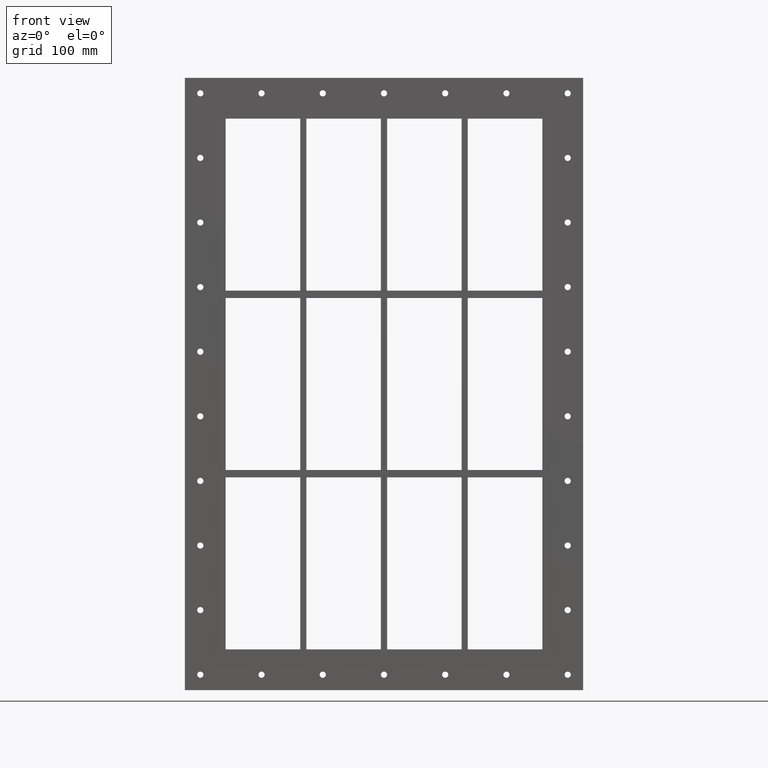
[diagram: clean part render]
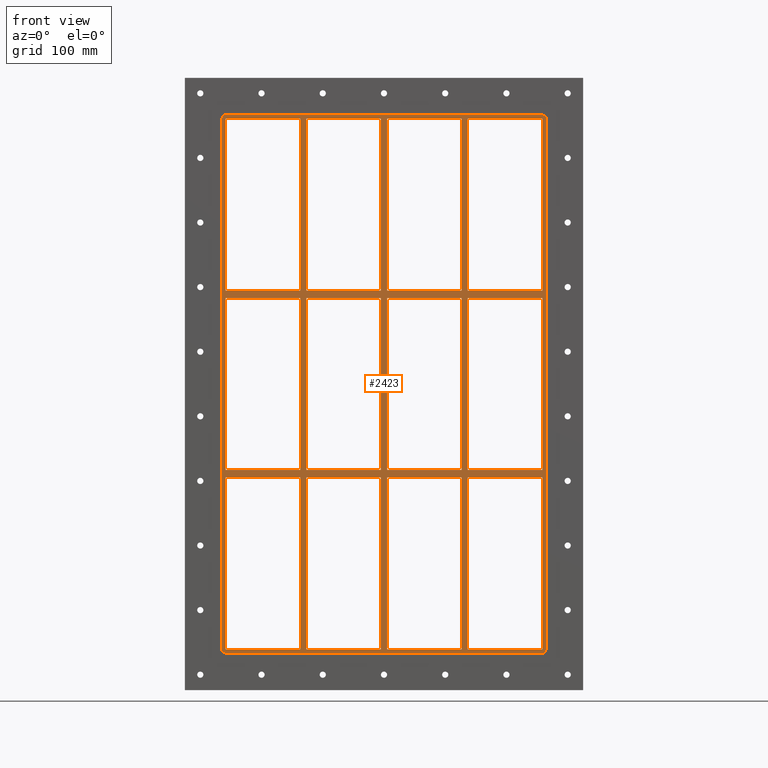
[diagram: same view with one face highlighted and labeled with its STEP entity id]
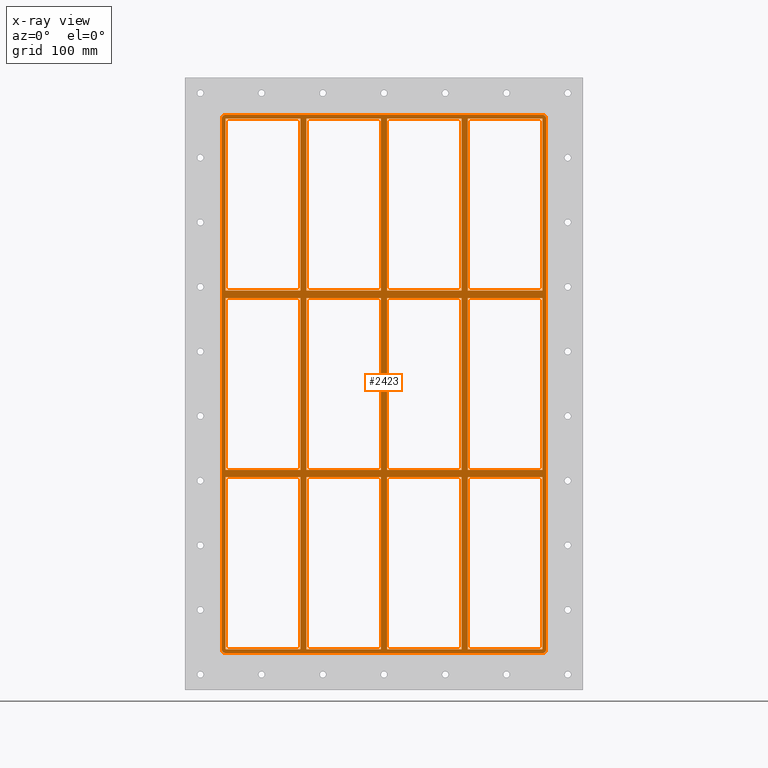
[diagram: x-ray of the same camera — body ghosted, the highlighted face saturated]
A machine part, front view. The second image highlights one B-rep face of the part: STEP entity #2423.
The next image is the same camera in x-ray: the body ghosted, the highlighted face saturated — about 0% of this face is hidden behind the body in this view.
In plain terms, the highlighted planar face has unit normal (0, 1, 0).
Its self-contained STEP definition (entity closure, byte-faithful):
#913=CARTESIAN_POINT('',(-135.50000000000142,-3.0,138.99999999999068));
#914=VERTEX_POINT('',#913);
#923=CARTESIAN_POINT('',(-255.99999999999972,-3.0,138.99999999999068));
#924=VERTEX_POINT('',#923);
#925=CARTESIAN_POINT('',(-135.50000000000136,-3.0,138.99999999999068));
#926=DIRECTION('',(-1.0,0.0,0.0));
#927=VECTOR('',#926,120.49999999999841);
#928=LINE('',#925,#927);
#929=EDGE_CURVE('',#914,#924,#928,.T.);
#953=CARTESIAN_POINT('',(-5.000000000001386,-3.0,138.99999999999071));
#954=VERTEX_POINT('',#953);
#963=CARTESIAN_POINT('',(-125.49999999999272,-3.0,138.99999999999068));
#964=VERTEX_POINT('',#963);
#965=CARTESIAN_POINT('',(-5.000000000001364,-3.0,138.99999999999068));
#966=DIRECTION('',(-1.0,0.0,0.0));
#967=VECTOR('',#966,120.49999999999136);
#968=LINE('',#965,#967);
#969=EDGE_CURVE('',#954,#964,#968,.T.);
#995=CARTESIAN_POINT('',(135.50000000000728,-3.0,138.99999999999071));
#996=VERTEX_POINT('',#995);
#1011=CARTESIAN_POINT('',(256.00000000000364,-3.0,138.99999999999071));
#1012=VERTEX_POINT('',#1011);
#1019=CARTESIAN_POINT('',(256.00000000000364,-3.0,138.99999999999071));
#1020=DIRECTION('',(-1.0,0.0,0.0));
#1021=VECTOR('',#1020,120.49999999999636);
#1022=LINE('',#1019,#1021);
#1023=EDGE_CURVE('',#1012,#996,#1022,.T.);
#1033=CARTESIAN_POINT('',(125.49999999999861,-3.0,138.99999999999071));
#1034=VERTEX_POINT('',#1033);
#1043=CARTESIAN_POINT('',(5.000000000007283,-3.0,138.99999999999071));
#1044=VERTEX_POINT('',#1043);
#1045=CARTESIAN_POINT('',(125.49999999999861,-3.0,138.99999999999071));
#1046=DIRECTION('',(-1.0,0.0,0.0));
#1047=VECTOR('',#1046,120.49999999999133);
#1048=LINE('',#1045,#1047);
#1049=EDGE_CURVE('',#1034,#1044,#1048,.T.);
#1075=CARTESIAN_POINT('',(-135.50000000000142,-3.0,150.99999999999994));
#1076=VERTEX_POINT('',#1075);
#1091=CARTESIAN_POINT('',(-255.99999999999972,-3.0,150.99999999999994));
#1092=VERTEX_POINT('',#1091);
#1099=CARTESIAN_POINT('',(-255.99999999999972,-3.0,150.99999999999994));
#1100=DIRECTION('',(1.0,0.0,0.0));
#1101=VECTOR('',#1100,120.49999999999832);
#1102=LINE('',#1099,#1101);
#1103=EDGE_CURVE('',#1092,#1076,#1102,.T.);
#1113=CARTESIAN_POINT('',(135.50000000000728,-3.0,150.99999999999994));
#1114=VERTEX_POINT('',#1113);
#1123=CARTESIAN_POINT('',(255.99999999999997,-3.0,150.99999999999994));
#1124=VERTEX_POINT('',#1123);
#1125=CARTESIAN_POINT('',(135.50000000000733,-3.0,150.99999999999994));
#1126=DIRECTION('',(1.0,0.0,0.0));
#1127=VECTOR('',#1126,120.49999999999272);
#1128=LINE('',#1125,#1127);
#1129=EDGE_CURVE('',#1114,#1124,#1128,.T.);
#1155=CARTESIAN_POINT('',(-5.000000000001386,-3.0,150.99999999999994));
#1156=VERTEX_POINT('',#1155);
#1171=CARTESIAN_POINT('',(-125.49999999999272,-3.0,150.99999999999994));
#1172=VERTEX_POINT('',#1171);
#1179=CARTESIAN_POINT('',(-125.49999999999272,-3.0,150.99999999999994));
#1180=DIRECTION('',(1.0,0.0,0.0));
#1181=VECTOR('',#1180,120.49999999999136);
#1182=LINE('',#1179,#1181);
#1183=EDGE_CURVE('',#1172,#1156,#1182,.T.);
#1195=CARTESIAN_POINT('',(125.49999999999862,-3.0,150.99999999999994));
#1196=VERTEX_POINT('',#1195);
#1211=CARTESIAN_POINT('',(5.000000000007283,-3.0,150.99999999999994));
#1212=VERTEX_POINT('',#1211);
#1219=CARTESIAN_POINT('',(5.000000000007276,-3.0,150.99999999999994));
#1220=DIRECTION('',(1.0,0.0,0.0));
#1221=VECTOR('',#1220,120.49999999999136);
#1222=LINE('',#1219,#1221);
#1223=EDGE_CURVE('',#1212,#1196,#1222,.T.);
#1242=CARTESIAN_POINT('',(-256.00000000000006,-3.0,429.00000000000006));
#1243=VERTEX_POINT('',#1242);
#1250=CARTESIAN_POINT('',(-256.00000000000006,-3.0,150.99999999999994));
#1251=DIRECTION('',(0.0,0.0,1.0));
#1252=VECTOR('',#1251,278.00000000000011);
#1253=LINE('',#1250,#1252);
#1254=EDGE_CURVE('',#1092,#1243,#1253,.T.);
#1273=CARTESIAN_POINT('',(255.99999999999997,-3.0,-139.00000000000006));
#1274=VERTEX_POINT('',#1273);
#1281=CARTESIAN_POINT('',(256.00000000000006,-3.0,138.99999999999073));
#1282=DIRECTION('',(0.0,0.0,-1.0));
#1283=VECTOR('',#1282,277.99999999999085);
#1284=LINE('',#1281,#1283);
#1285=EDGE_CURVE('',#1012,#1274,#1284,.T.);
#1296=CARTESIAN_POINT('',(256.00000000000006,-3.0,429.00000000000006));
#1297=VERTEX_POINT('',#1296);
#1298=CARTESIAN_POINT('',(256.00000000000006,-3.0,429.00000000000006));
#1299=DIRECTION('',(0.0,0.0,-1.0));
#1300=VECTOR('',#1299,278.00000000000011);
#1301=LINE('',#1298,#1300);
#1302=EDGE_CURVE('',#1297,#1124,#1301,.T.);
#1327=CARTESIAN_POINT('',(125.49999999999855,-3.0,429.00000000000006));
#1328=VERTEX_POINT('',#1327);
#1329=CARTESIAN_POINT('',(125.49999999999861,-3.0,150.99999999999994));
#1330=DIRECTION('',(0.0,0.0,1.0));
#1331=VECTOR('',#1330,278.00000000000011);
#1332=LINE('',#1329,#1331);
#1333=EDGE_CURVE('',#1196,#1328,#1332,.T.);
#1366=CARTESIAN_POINT('',(135.50000000000728,-3.0,429.00000000000006));
#1367=VERTEX_POINT('',#1366);
#1374=CARTESIAN_POINT('',(135.50000000000728,-3.0,429.00000000000006));
#1375=DIRECTION('',(0.0,0.0,-1.0));
#1376=VECTOR('',#1375,278.00000000000011);
#1377=LINE('',#1374,#1376);
#1378=EDGE_CURVE('',#1367,#1114,#1377,.T.);
#1389=CARTESIAN_POINT('',(-5.000000000001457,-3.0,429.00000000000006));
#1390=VERTEX_POINT('',#1389);
#1391=CARTESIAN_POINT('',(-5.000000000001399,-3.0,150.99999999999994));
#1392=DIRECTION('',(0.0,0.0,1.0));
#1393=VECTOR('',#1392,278.00000000000011);
#1394=LINE('',#1391,#1393);
#1395=EDGE_CURVE('',#1156,#1390,#1394,.T.);
#1428=CARTESIAN_POINT('',(5.000000000007283,-3.0,429.00000000000006));
#1429=VERTEX_POINT('',#1428);
#1436=CARTESIAN_POINT('',(5.000000000007283,-3.0,429.00000000000006));
#1437=DIRECTION('',(0.0,0.0,-1.0));
#1438=VECTOR('',#1437,278.00000000000011);
#1439=LINE('',#1436,#1438);
#1440=EDGE_CURVE('',#1429,#1212,#1439,.T.);
#1451=CARTESIAN_POINT('',(-135.50000000000148,-3.0,429.00000000000006));
#1452=VERTEX_POINT('',#1451);
#1453=CARTESIAN_POINT('',(-135.50000000000139,-3.0,150.99999999999994));
#1454=DIRECTION('',(0.0,0.0,1.0));
#1455=VECTOR('',#1454,278.00000000000011);
#1456=LINE('',#1453,#1455);
#1457=EDGE_CURVE('',#1076,#1452,#1456,.T.);
#1490=CARTESIAN_POINT('',(-135.50000000000134,-3.0,-139.00000000000006));
#1491=VERTEX_POINT('',#1490);
#1498=CARTESIAN_POINT('',(-135.50000000000134,-3.0,-139.00000000000006));
#1499=DIRECTION('',(0.0,0.0,1.0));
#1500=VECTOR('',#1499,277.99999999999068);
#1501=LINE('',#1498,#1500);
#1502=EDGE_CURVE('',#1491,#914,#1501,.T.);
#1521=CARTESIAN_POINT('',(-125.49999999999272,-3.0,429.00000000000006));
#1522=VERTEX_POINT('',#1521);
#1529=CARTESIAN_POINT('',(-125.49999999999272,-3.0,429.00000000000006));
#1530=DIRECTION('',(0.0,0.0,-1.0));
#1531=VECTOR('',#1530,278.00000000000011);
#1532=LINE('',#1529,#1531);
#1533=EDGE_CURVE('',#1522,#1172,#1532,.T.);
#1887=CARTESIAN_POINT('',(125.49999999999868,-3.0,-139.00000000000006));
#1888=VERTEX_POINT('',#1887);
#1895=CARTESIAN_POINT('',(125.49999999999866,-3.0,-139.00000000000006));
#1896=DIRECTION('',(0.0,0.0,1.0));
#1897=VECTOR('',#1896,277.99999999999068);
#1898=LINE('',#1895,#1897);
#1899=EDGE_CURVE('',#1888,#1034,#1898,.T.);
#1909=CARTESIAN_POINT('',(125.49999999999868,-3.0,-151.00000000000929));
#1910=VERTEX_POINT('',#1909);
#1918=CARTESIAN_POINT('',(125.49999999999872,-3.0,-429.00000000000006));
#1919=VERTEX_POINT('',#1918);
#1926=CARTESIAN_POINT('',(125.49999999999872,-3.0,-429.00000000000006));
#1927=DIRECTION('',(0.0,0.0,1.0));
#1928=VECTOR('',#1927,277.99999999999079);
#1929=LINE('',#1926,#1928);
#1930=EDGE_CURVE('',#1919,#1910,#1929,.T.);
#1941=CARTESIAN_POINT('',(135.50000000000728,-3.0,-139.00000000000006));
#1942=VERTEX_POINT('',#1941);
#1943=CARTESIAN_POINT('',(135.50000000000728,-3.0,138.99999999999073));
#1944=DIRECTION('',(0.0,0.0,-1.0));
#1945=VECTOR('',#1944,277.99999999999079);
#1946=LINE('',#1943,#1945);
#1947=EDGE_CURVE('',#996,#1942,#1946,.T.);
#1964=CARTESIAN_POINT('',(135.50000000000728,-3.0,-151.00000000000932));
#1965=VERTEX_POINT('',#1964);
#1972=CARTESIAN_POINT('',(135.50000000000728,-3.0,-428.99999999998431));
#1973=VERTEX_POINT('',#1972);
#1974=CARTESIAN_POINT('',(135.50000000000728,-3.0,-151.00000000000927));
#1975=DIRECTION('',(0.0,0.0,-1.0));
#1976=VECTOR('',#1975,277.99999999997499);
#1977=LINE('',#1974,#1976);
#1978=EDGE_CURVE('',#1965,#1973,#1977,.T.);
#1997=CARTESIAN_POINT('',(-5.000000000001339,-3.0,-139.00000000000006));
#1998=VERTEX_POINT('',#1997);
#2005=CARTESIAN_POINT('',(-5.000000000001339,-3.0,-139.00000000000006));
#2006=DIRECTION('',(0.0,0.0,1.0));
#2007=VECTOR('',#2006,277.99999999999068);
#2008=LINE('',#2005,#2007);
#2009=EDGE_CURVE('',#1998,#954,#2008,.T.);
#2019=CARTESIAN_POINT('',(-5.000000000001337,-3.0,-151.00000000000932));
#2020=VERTEX_POINT('',#2019);
#2028=CARTESIAN_POINT('',(-5.000000000001279,-3.0,-429.00000000000006));
#2029=VERTEX_POINT('',#2028);
#2036=CARTESIAN_POINT('',(-5.000000000001279,-3.0,-429.00000000000006));
#2037=DIRECTION('',(0.0,0.0,1.0));
#2038=VECTOR('',#2037,277.99999999999073);
#2039=LINE('',#2036,#2038);
#2040=EDGE_CURVE('',#2029,#2020,#2039,.T.);
#2051=CARTESIAN_POINT('',(5.000000000007283,-3.0,-139.00000000000006));
#2052=VERTEX_POINT('',#2051);
#2053=CARTESIAN_POINT('',(5.000000000007283,-3.0,138.99999999999068));
#2054=DIRECTION('',(0.0,0.0,-1.0));
#2055=VECTOR('',#2054,277.99999999999073);
#2056=LINE('',#2053,#2055);
#2057=EDGE_CURVE('',#1044,#2052,#2056,.T.);
#2074=CARTESIAN_POINT('',(5.000000000007283,-3.0,-151.00000000000932));
#2075=VERTEX_POINT('',#2074);
#2082=CARTESIAN_POINT('',(5.000000000007283,-3.0,-428.99999999998431));
#2083=VERTEX_POINT('',#2082);
#2084=CARTESIAN_POINT('',(5.000000000007283,-3.0,-151.00000000000927));
#2085=DIRECTION('',(0.0,0.0,-1.0));
#2086=VECTOR('',#2085,277.99999999997499);
#2087=LINE('',#2084,#2086);
#2088=EDGE_CURVE('',#2075,#2083,#2087,.T.);
#2107=CARTESIAN_POINT('',(-125.49999999999272,-3.0,-428.99999999998431));
#2108=VERTEX_POINT('',#2107);
#2115=CARTESIAN_POINT('',(-5.000000000001279,-3.0,-429.00000000000006));
#2116=DIRECTION('',(-1.0,0.0,0.0));
#2117=VECTOR('',#2116,120.49999999999145);
#2118=LINE('',#2115,#2117);
#2119=EDGE_CURVE('',#2029,#2108,#2118,.T.);
#2132=CARTESIAN_POINT('',(125.49999999999872,-3.0,-429.00000000000006));
#2133=DIRECTION('',(-1.0,0.0,0.0));
#2134=VECTOR('',#2133,120.49999999999145);
#2135=LINE('',#2132,#2134);
#2136=EDGE_CURVE('',#1919,#2083,#2135,.T.);
#2147=CARTESIAN_POINT('',(256.00000000000006,-3.0,-429.00000000000006));
#2148=VERTEX_POINT('',#2147);
#2149=CARTESIAN_POINT('',(256.00000000000006,-3.0,-429.00000000000006));
#2150=DIRECTION('',(-1.0,0.0,0.0));
#2151=VECTOR('',#2150,120.49999999999278);
#2152=LINE('',#2149,#2151);
#2153=EDGE_CURVE('',#2148,#1973,#2152,.T.);
#2165=CARTESIAN_POINT('',(-2.446632E-014,-3.0,-7.339896E-014));
#2166=DIRECTION('',(0.0,1.0,0.0));
#2167=DIRECTION('',(0.0,0.0,1.0));
#2168=AXIS2_PLACEMENT_3D('',#2165,#2166,#2167);
#2169=PLANE('',#2168);
#2170=CARTESIAN_POINT('',(262.0,-3.0,-429.00000000000006));
#2171=VERTEX_POINT('',#2170);
#2172=CARTESIAN_POINT('',(256.0,-3.0,-435.00000000000011));
#2173=VERTEX_POINT('',#2172);
#2174=CARTESIAN_POINT('',(256.0,-3.0,-429.00000000000006));
#2175=DIRECTION('',(0.0,1.0,0.0));
#2176=DIRECTION('',(0.707106781186543,0.0,-0.707106781186552));
#2177=AXIS2_PLACEMENT_3D('',#2174,#2175,#2176);
#2178=CIRCLE('',#2177,6.0);
#2179=EDGE_CURVE('',#2171,#2173,#2178,.T.);
#2180=ORIENTED_EDGE('',*,*,#2179,.F.);
#2181=CARTESIAN_POINT('',(262.0,-3.0,429.0));
#2182=VERTEX_POINT('',#2181);
#2183=CARTESIAN_POINT('',(262.0,-3.0,-429.0));
#2184=DIRECTION('',(0.0,0.0,1.0));
#2185=VECTOR('',#2184,858.0);
#2186=LINE('',#2183,#2185);
#2187=EDGE_CURVE('',#2171,#2182,#2186,.T.);
#2188=ORIENTED_EDGE('',*,*,#2187,.T.);
#2189=CARTESIAN_POINT('',(256.0,-3.0,435.0));
#2190=VERTEX_POINT('',#2189);
#2191=CARTESIAN_POINT('',(256.0,-3.0,429.0));
#2192=DIRECTION('',(0.0,1.0,0.0));
#2193=DIRECTION('',(0.707106781186543,0.0,0.707106781186552));
#2194=AXIS2_PLACEMENT_3D('',#2191,#2192,#2193);
#2195=CIRCLE('',#2194,6.0);
#2196=EDGE_CURVE('',#2190,#2182,#2195,.T.);
#2197=ORIENTED_EDGE('',*,*,#2196,.F.);
#2198=CARTESIAN_POINT('',(-256.00000000000011,-3.0,435.0));
#2199=VERTEX_POINT('',#2198);
#2200=CARTESIAN_POINT('',(256.0,-3.0,435.0));
#2201=DIRECTION('',(-1.0,0.0,0.0));
#2202=VECTOR('',#2201,512.0);
#2203=LINE('',#2200,#2202);
#2204=EDGE_CURVE('',#2190,#2199,#2203,.T.);
#2205=ORIENTED_EDGE('',*,*,#2204,.T.);
#2206=CARTESIAN_POINT('',(-262.00000000000006,-3.0,428.99999999999989));
#2207=VERTEX_POINT('',#2206);
#2208=CARTESIAN_POINT('',(-256.00000000000011,-3.0,428.99999999999989));
#2209=DIRECTION('',(0.0,1.0,0.0));
#2210=DIRECTION('',(-0.707106781186539,0.0,0.707106781186556));
#2211=AXIS2_PLACEMENT_3D('',#2208,#2209,#2210);
#2212=CIRCLE('',#2211,6.000000000000001);
#2213=EDGE_CURVE('',#2207,#2199,#2212,.T.);
#2214=ORIENTED_EDGE('',*,*,#2213,.F.);
#2215=CARTESIAN_POINT('',(-262.00000000000006,-3.0,-429.00000000000023));
#2216=VERTEX_POINT('',#2215);
#2217=CARTESIAN_POINT('',(-262.00000000000006,-3.0,428.99999999999989));
#2218=DIRECTION('',(0.0,0.0,-1.0));
#2219=VECTOR('',#2218,858.0);
#2220=LINE('',#2217,#2219);
#2221=EDGE_CURVE('',#2207,#2216,#2220,.T.);
#2222=ORIENTED_EDGE('',*,*,#2221,.T.);
#2223=CARTESIAN_POINT('',(-256.00000000000006,-3.0,-435.00000000000011));
#2224=VERTEX_POINT('',#2223);
#2225=CARTESIAN_POINT('',(-256.00000000000006,-3.0,-429.00000000000023));
#2226=DIRECTION('',(0.0,1.0,0.0));
#2227=DIRECTION('',(-0.707106781186552,0.0,-0.707106781186543));
#2228=AXIS2_PLACEMENT_3D('',#2225,#2226,#2227);
#2229=CIRCLE('',#2228,6.000000000000001);
#2230=EDGE_CURVE('',#2224,#2216,#2229,.T.);
#2231=ORIENTED_EDGE('',*,*,#2230,.F.);
#2232=CARTESIAN_POINT('',(-256.0,-3.0,-435.00000000000011));
#2233=DIRECTION('',(1.0,0.0,0.0));
#2234=VECTOR('',#2233,512.0);
#2235=LINE('',#2232,#2234);
#2236=EDGE_CURVE('',#2224,#2173,#2235,.T.);
#2237=ORIENTED_EDGE('',*,*,#2236,.T.);
#2238=EDGE_LOOP('',(#2180,#2188,#2197,#2205,#2214,#2222,#2231,#2237));
#2239=FACE_OUTER_BOUND('',#2238,.T.);
#2240=ORIENTED_EDGE('',*,*,#1254,.T.);
#2241=CARTESIAN_POINT('',(-256.00000000000006,-3.0,429.00000000000006));
#2242=DIRECTION('',(1.0,0.0,0.0));
#2243=VECTOR('',#2242,120.49999999999858);
#2244=LINE('',#2241,#2243);
#2245=EDGE_CURVE('',#1243,#1452,#2244,.T.);
#2246=ORIENTED_EDGE('',*,*,#2245,.T.);
#2247=ORIENTED_EDGE('',*,*,#1457,.F.);
#2248=ORIENTED_EDGE('',*,*,#1103,.F.);
#2249=EDGE_LOOP('',(#2240,#2246,#2247,#2248));
#2250=FACE_BOUND('',#2249,.T.);
#2251=ORIENTED_EDGE('',*,*,#1285,.T.);
#2252=CARTESIAN_POINT('',(135.50000000000733,-3.0,-139.00000000000006));
#2253=DIRECTION('',(1.0,0.0,0.0));
#2254=VECTOR('',#2253,120.49999999999272);
#2255=LINE('',#2252,#2254);
#2256=EDGE_CURVE('',#1942,#1274,#2255,.T.);
#2257=ORIENTED_EDGE('',*,*,#2256,.F.);
#2258=ORIENTED_EDGE('',*,*,#1947,.F.);
#2259=ORIENTED_EDGE('',*,*,#1023,.F.);
#2260=EDGE_LOOP('',(#2251,#2257,#2258,#2259));
#2261=FACE_BOUND('',#2260,.T.);
#2262=ORIENTED_EDGE('',*,*,#1899,.F.);
#2263=CARTESIAN_POINT('',(5.000000000007276,-3.0,-139.00000000000006));
#2264=DIRECTION('',(1.0,0.0,0.0));
#2265=VECTOR('',#2264,120.49999999999142);
#2266=LINE('',#2263,#2265);
#2267=EDGE_CURVE('',#2052,#1888,#2266,.T.);
#2268=ORIENTED_EDGE('',*,*,#2267,.F.);
#2269=ORIENTED_EDGE('',*,*,#2057,.F.);
#2270=ORIENTED_EDGE('',*,*,#1049,.F.);
#2271=EDGE_LOOP('',(#2262,#2268,#2269,#2270));
#2272=FACE_BOUND('',#2271,.T.);
#2273=ORIENTED_EDGE('',*,*,#2009,.F.);
#2274=CARTESIAN_POINT('',(-125.49999999999272,-3.0,-139.00000000000006));
#2275=VERTEX_POINT('',#2274);
#2276=CARTESIAN_POINT('',(-125.49999999999272,-3.0,-139.00000000000006));
#2277=DIRECTION('',(1.0,0.0,0.0));
#2278=VECTOR('',#2277,120.49999999999139);
#2279=LINE('',#2276,#2278);
#2280=EDGE_CURVE('',#2275,#1998,#2279,.T.);
#2281=ORIENTED_EDGE('',*,*,#2280,.F.);
#2282=CARTESIAN_POINT('',(-125.49999999999272,-3.0,138.99999999999068));
#2283=DIRECTION('',(0.0,0.0,-1.0));
#2284=VECTOR('',#2283,277.99999999999073);
#2285=LINE('',#2282,#2284);
#2286=EDGE_CURVE('',#964,#2275,#2285,.T.);
#2287=ORIENTED_EDGE('',*,*,#2286,.F.);
#2288=ORIENTED_EDGE('',*,*,#969,.F.);
#2289=EDGE_LOOP('',(#2273,#2281,#2287,#2288));
#2290=FACE_BOUND('',#2289,.T.);
#2291=ORIENTED_EDGE('',*,*,#1223,.F.);
#2292=ORIENTED_EDGE('',*,*,#1440,.F.);
#2293=CARTESIAN_POINT('',(5.000000000007276,-3.0,429.00000000000006));
#2294=DIRECTION('',(1.0,0.0,0.0));
#2295=VECTOR('',#2294,120.49999999999125);
#2296=LINE('',#2293,#2295);
#2297=EDGE_CURVE('',#1429,#1328,#2296,.T.);
#2298=ORIENTED_EDGE('',*,*,#2297,.T.);
#2299=ORIENTED_EDGE('',*,*,#1333,.F.);
#2300=EDGE_LOOP('',(#2291,#2292,#2298,#2299));
#2301=FACE_BOUND('',#2300,.T.);
#2302=ORIENTED_EDGE('',*,*,#1183,.F.);
#2303=ORIENTED_EDGE('',*,*,#1533,.F.);
#2304=CARTESIAN_POINT('',(-125.49999999999274,-3.0,429.00000000000006));
#2305=DIRECTION('',(1.0,0.0,0.0));
#2306=VECTOR('',#2305,120.49999999999126);
#2307=LINE('',#2304,#2306);
#2308=EDGE_CURVE('',#1522,#1390,#2307,.T.);
#2309=ORIENTED_EDGE('',*,*,#2308,.T.);
#2310=ORIENTED_EDGE('',*,*,#1395,.F.);
#2311=EDGE_LOOP('',(#2302,#2303,#2309,#2310));
#2312=FACE_BOUND('',#2311,.T.);
#2313=ORIENTED_EDGE('',*,*,#929,.F.);
#2314=ORIENTED_EDGE('',*,*,#1502,.F.);
#2315=CARTESIAN_POINT('',(-255.99999999999972,-3.0,-139.00000000000006));
#2316=VERTEX_POINT('',#2315);
#2317=CARTESIAN_POINT('',(-255.99999999999972,-3.0,-139.00000000000006));
#2318=DIRECTION('',(1.0,0.0,0.0));
#2319=VECTOR('',#2318,120.49999999999841);
#2320=LINE('',#2317,#2319);
#2321=EDGE_CURVE('',#2316,#1491,#2320,.T.);
#2322=ORIENTED_EDGE('',*,*,#2321,.F.);
#2323=CARTESIAN_POINT('',(-256.00000000000006,-3.0,-139.00000000000006));
#2324=DIRECTION('',(0.0,0.0,1.0));
#2325=VECTOR('',#2324,277.99999999999068);
#2326=LINE('',#2323,#2325);
#2327=EDGE_CURVE('',#2316,#924,#2326,.T.);
#2328=ORIENTED_EDGE('',*,*,#2327,.T.);
#2329=EDGE_LOOP('',(#2313,#2314,#2322,#2328));
#2330=FACE_BOUND('',#2329,.T.);
#2331=ORIENTED_EDGE('',*,*,#1129,.F.);
#2332=ORIENTED_EDGE('',*,*,#1378,.F.);
#2333=CARTESIAN_POINT('',(135.50000000000728,-3.0,429.00000000000006));
#2334=DIRECTION('',(1.0,0.0,0.0));
#2335=VECTOR('',#2334,120.49999999999272);
#2336=LINE('',#2333,#2335);
#2337=EDGE_CURVE('',#1367,#1297,#2336,.T.);
#2338=ORIENTED_EDGE('',*,*,#2337,.T.);
#2339=ORIENTED_EDGE('',*,*,#1302,.T.);
#2340=EDGE_LOOP('',(#2331,#2332,#2338,#2339));
#2341=FACE_BOUND('',#2340,.T.);
#2342=ORIENTED_EDGE('',*,*,#2136,.T.);
#2343=ORIENTED_EDGE('',*,*,#2088,.F.);
#2344=CARTESIAN_POINT('',(125.49999999999866,-3.0,-151.00000000000929));
#2345=DIRECTION('',(-1.0,0.0,0.0));
#2346=VECTOR('',#2345,120.49999999999139);
#2347=LINE('',#2344,#2346);
#2348=EDGE_CURVE('',#1910,#2075,#2347,.T.);
#2349=ORIENTED_EDGE('',*,*,#2348,.F.);
#2350=ORIENTED_EDGE('',*,*,#1930,.F.);
#2351=EDGE_LOOP('',(#2342,#2343,#2349,#2350));
#2352=FACE_BOUND('',#2351,.T.);
#2353=ORIENTED_EDGE('',*,*,#2119,.T.);
#2354=CARTESIAN_POINT('',(-125.49999999999272,-3.0,-151.00000000000929));
#2355=VERTEX_POINT('',#2354);
#2356=CARTESIAN_POINT('',(-125.49999999999272,-3.0,-151.00000000000927));
#2357=DIRECTION('',(0.0,0.0,-1.0));
#2358=VECTOR('',#2357,277.99999999997499);
#2359=LINE('',#2356,#2358);
#2360=EDGE_CURVE('',#2355,#2108,#2359,.T.);
#2361=ORIENTED_EDGE('',*,*,#2360,.F.);
#2362=CARTESIAN_POINT('',(-5.000000000001364,-3.0,-151.00000000000932));
#2363=DIRECTION('',(-1.0,0.0,0.0));
#2364=VECTOR('',#2363,120.49999999999136);
#2365=LINE('',#2362,#2364);
#2366=EDGE_CURVE('',#2020,#2355,#2365,.T.);
#2367=ORIENTED_EDGE('',*,*,#2366,.F.);
#2368=ORIENTED_EDGE('',*,*,#2040,.F.);
#2369=EDGE_LOOP('',(#2353,#2361,#2367,#2368));
#2370=FACE_BOUND('',#2369,.T.);
#2371=ORIENTED_EDGE('',*,*,#1978,.F.);
#2372=CARTESIAN_POINT('',(256.00000000000364,-3.0,-151.00000000000929));
#2373=VERTEX_POINT('',#2372);
#2374=CARTESIAN_POINT('',(256.00000000000364,-3.0,-151.00000000000929));
#2375=DIRECTION('',(-1.0,0.0,0.0));
#2376=VECTOR('',#2375,120.49999999999636);
#2377=LINE('',#2374,#2376);
#2378=EDGE_CURVE('',#2373,#1965,#2377,.T.);
#2379=ORIENTED_EDGE('',*,*,#2378,.F.);
#2380=CARTESIAN_POINT('',(256.00000000000006,-3.0,-151.00000000000927));
#2381=DIRECTION('',(0.0,0.0,-1.0));
#2382=VECTOR('',#2381,277.99999999999085);
#2383=LINE('',#2380,#2382);
#2384=EDGE_CURVE('',#2373,#2148,#2383,.T.);
#2385=ORIENTED_EDGE('',*,*,#2384,.T.);
#2386=ORIENTED_EDGE('',*,*,#2153,.T.);
#2387=EDGE_LOOP('',(#2371,#2379,#2385,#2386));
#2388=FACE_BOUND('',#2387,.T.);
#2389=CARTESIAN_POINT('',(-135.50000000000131,-3.0,-151.00000000000932));
#2390=VERTEX_POINT('',#2389);
#2391=CARTESIAN_POINT('',(-255.99999999999972,-3.0,-151.00000000000932));
#2392=VERTEX_POINT('',#2391);
#2393=CARTESIAN_POINT('',(-135.50000000000131,-3.0,-151.00000000000932));
#2394=DIRECTION('',(-1.0,0.0,0.0));
#2395=VECTOR('',#2394,120.49999999999847);
#2396=LINE('',#2393,#2395);
#2397=EDGE_CURVE('',#2390,#2392,#2396,.T.);
#2398=ORIENTED_EDGE('',*,*,#2397,.F.);
#2399=CARTESIAN_POINT('',(-135.50000000000128,-3.0,-429.00000000000006));
#2400=VERTEX_POINT('',#2399);
#2401=CARTESIAN_POINT('',(-135.50000000000128,-3.0,-429.00000000000006));
#2402=DIRECTION('',(0.0,0.0,1.0));
#2403=VECTOR('',#2402,277.99999999999073);
#2404=LINE('',#2401,#2403);
#2405=EDGE_CURVE('',#2400,#2390,#2404,.T.);
#2406=ORIENTED_EDGE('',*,*,#2405,.F.);
#2407=CARTESIAN_POINT('',(-256.00000000000006,-3.0,-429.00000000000006));
#2408=VERTEX_POINT('',#2407);
#2409=CARTESIAN_POINT('',(-135.50000000000131,-3.0,-429.00000000000006));
#2410=DIRECTION('',(-1.0,0.0,0.0));
#2411=VECTOR('',#2410,120.49999999999875);
#2412=LINE('',#2409,#2411);
#2413=EDGE_CURVE('',#2400,#2408,#2412,.T.);
#2414=ORIENTED_EDGE('',*,*,#2413,.T.);
#2415=CARTESIAN_POINT('',(-256.00000000000006,-3.0,-429.00000000000006));
#2416=DIRECTION('',(0.0,0.0,1.0));
#2417=VECTOR('',#2416,277.99999999999073);
#2418=LINE('',#2415,#2417);
#2419=EDGE_CURVE('',#2408,#2392,#2418,.T.);
#2420=ORIENTED_EDGE('',*,*,#2419,.T.);
#2421=EDGE_LOOP('',(#2398,#2406,#2414,#2420));
#2422=FACE_BOUND('',#2421,.T.);
#2423=ADVANCED_FACE('',(#2239,#2250,#2261,#2272,#2290,#2301,#2312,#2330,#2341,#2352,#2370,#2388,#2422),#2169,.F.);